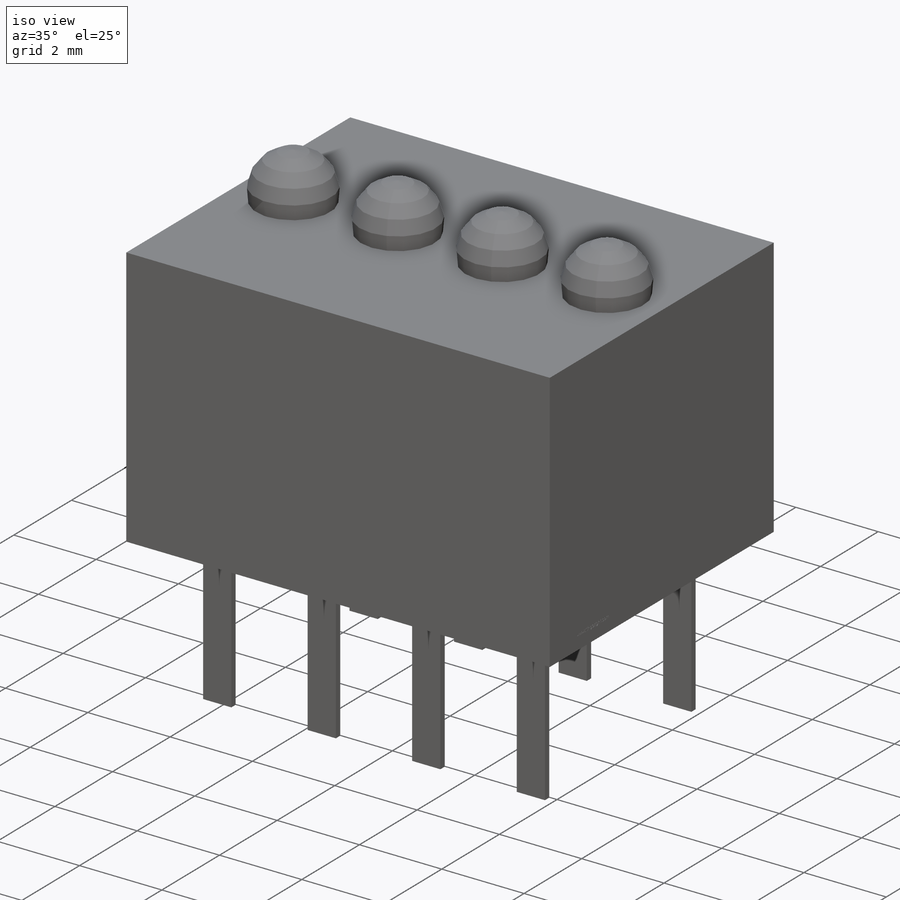
[diagram: iso view]
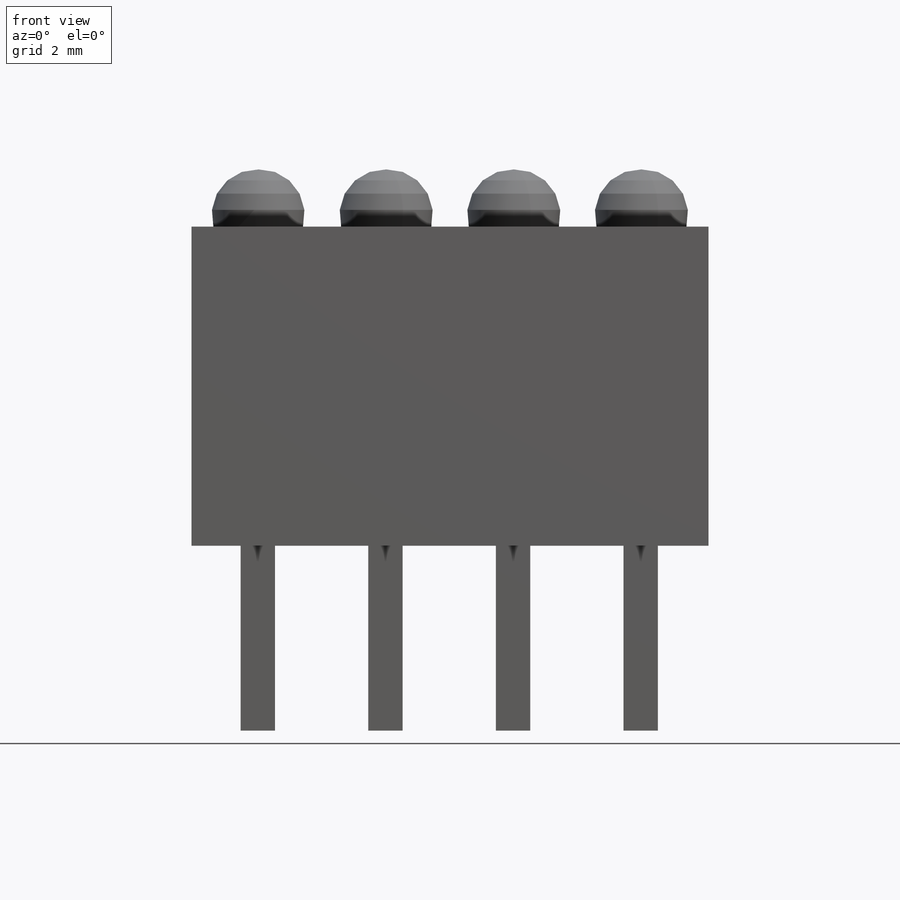
[diagram: front view]
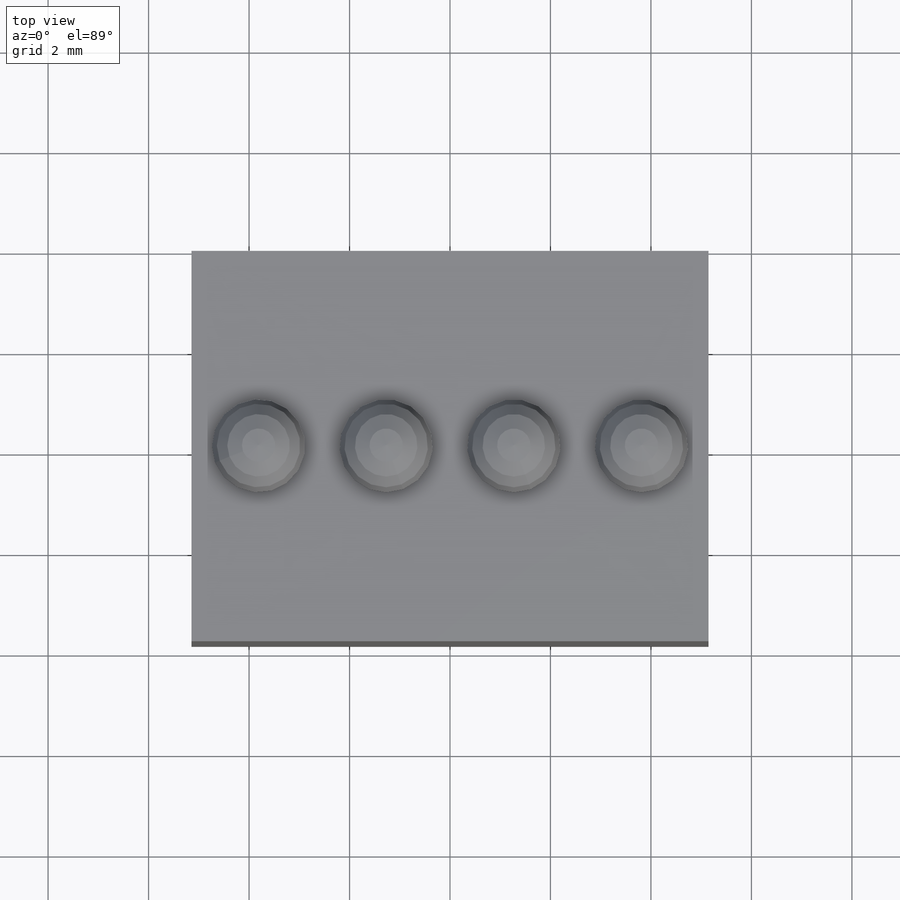
[diagram: top view]
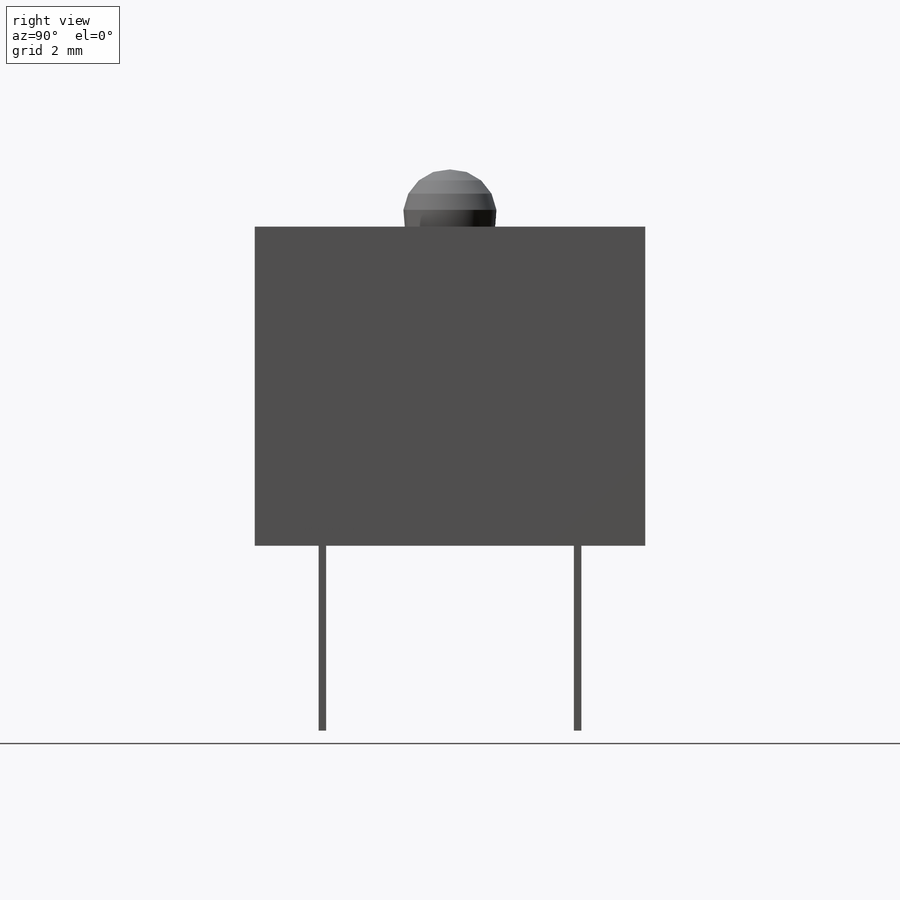
[diagram: right view]
SOLIDWORKS PART (.sldprt)
format: sldprt  version: not decoded by parser v0  size: 635,904 bytes
history: native  units: mm
features: sketch x7, revolve x4, extrude x2, material x1, cut_extrude x1 (+11 scaffold rows collapsed)
feature tree (26):
  scaffold x11  (default folders/planes/origin — collapsed)
  material  "Material <not specified>"
  sketch  "Sketch1"  dims[D4=1.8mm D1=10.29mm D2=7.77mm D3=1.14mm D5=2.54mm D6=2.54mm D7=2.54mm]
  extrude  "Extrude1"  Depth=6.35mm
  sketch  "Sketch2"  dims[D1=2.54mm D2=2.54mm D3=2.54mm D4=0.686mm D5=0.15mm D6=1.35mm D7=5.08mm D8=1.02mm]
  extrude  "Extrude2"  Depth=3.68mm
  sketch  "Sketch3"  dims[c1.D2=1.8mm c1.D1=1.14mm c1.D3=2.54mm c1.D4=2.54mm c2.D1=1.14mm c2.D3=2.54mm c2.D4=2.54mm c2.D5=2.54mm c2.D6=0.9mm]
  revolve  "Revolve5"  Angle=360deg
  revolve  "Revolve6"  [1 undecoded]
  sketch  "Sketch3<3>"  dims[D1=360.0deg]
  revolve  "Revolve7"  [1 undecoded]
  sketch  "Sketch3<4>"  dims[D1=360.0deg]
  revolve  "Revolve8"  [1 undecoded]
  sketch  "Sketch3<5>"  dims[D1=360.0deg]
  sketch  "Sketch4"  dims[D1=3.0mm D2=0.3mm]
  cut_extrude  "Cut-Extrude1"  Depth=0.01mm
decode coverage: 11 of 14 modeling features carry decoded parameters
note: 3 parameter values undecoded
summary: no parameter record found for 3 features
note: suppression state not decoded; provenance and decode notes live in map.json
